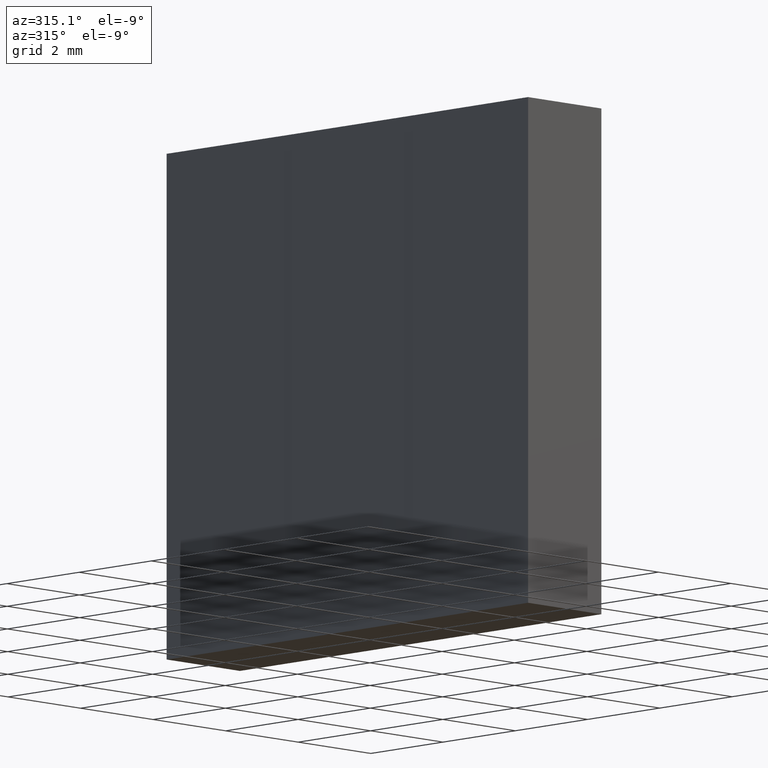
[diagram: clean part render]
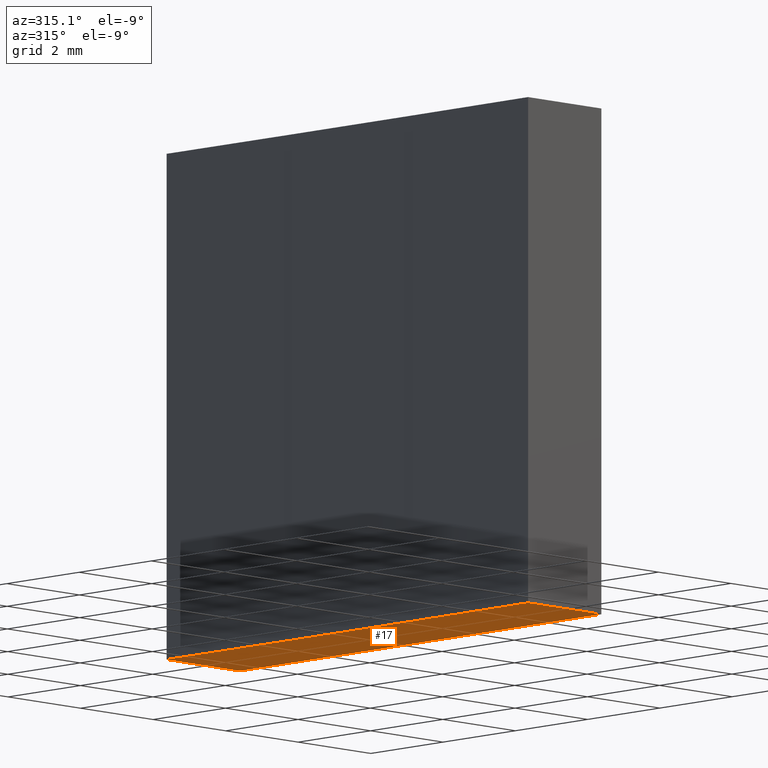
[diagram: same view with one face highlighted and labeled with its STEP entity id]
A machine part, auxiliary view. The second image highlights one B-rep face of the part: STEP entity #17.
In plain terms, the highlighted planar face has unit normal (0, 0, 1).
Its self-contained STEP definition (entity closure, byte-faithful):
#3 = CARTESIAN_POINT ( 'NONE',  ( 433.8743084995878121, -114.5310099826064487, 0.000000000000000000 ) ) ;
#4 = AXIS2_PLACEMENT_3D ( 'NONE', #60, #9, #141 ) ;
#9 = DIRECTION ( 'NONE',  ( 0.000000000000000000, 0.000000000000000000, 1.000000000000000000 ) ) ;
#14 = AXIS2_PLACEMENT_3D ( 'NONE', #81, #229, #123 ) ;
#17 = ADVANCED_FACE ( 'NONE', ( #209 ), #44, .F. ) ;
#33 = EDGE_LOOP ( 'NONE', ( #183, #97, #130, #112 ) ) ;
#43 = LINE ( 'NONE', #99, #127 ) ;
#44 = PLANE ( 'NONE',  #4 ) ;
#47 = CARTESIAN_POINT ( 'NONE',  ( 433.8743084995877553, -124.5310099826064203, 0.000000000000000000 ) ) ;
#55 = VERTEX_POINT ( 'NONE', #211 ) ;
#57 = VERTEX_POINT ( 'NONE', #3 ) ;
#60 = CARTESIAN_POINT ( 'NONE',  ( -84.92150362787631934, -119.5310099826064345, 0.000000000000000000 ) ) ;
#81 = CARTESIAN_POINT ( 'NONE',  ( -84.92150362787631934, -119.5310099826064345, 0.000000000000000000 ) ) ;
#97 = ORIENTED_EDGE ( 'NONE', *, *, #152, .F. ) ;
#99 = CARTESIAN_POINT ( 'NONE',  ( 431.8543084995877166, -114.5310099826064345, 0.000000000000000000 ) ) ;
#107 = EDGE_CURVE ( 'NONE', #55, #224, #190, .T. ) ;
#108 = VECTOR ( 'NONE', #188, 1000.000000000000000 ) ;
#111 = EDGE_CURVE ( 'NONE', #132, #55, #202, .T. ) ;
#112 = ORIENTED_EDGE ( 'NONE', *, *, #107, .F. ) ;
#123 = DIRECTION ( 'NONE',  ( 1.000000000000000000, 0.000000000000000000, 0.000000000000000000 ) ) ;
#127 = VECTOR ( 'NONE', #228, 1000.000000000000000 ) ;
#130 = ORIENTED_EDGE ( 'NONE', *, *, #231, .F. ) ;
#132 = VERTEX_POINT ( 'NONE', #157 ) ;
#141 = DIRECTION ( 'NONE',  ( 1.000000000000000000, 0.000000000000000000, -0.000000000000000000 ) ) ;
#152 = EDGE_CURVE ( 'NONE', #57, #132, #43, .T. ) ;
#157 = CARTESIAN_POINT ( 'NONE',  ( 431.8543084995877166, -114.5310099826064345, 0.000000000000000000 ) ) ;
#180 = CARTESIAN_POINT ( 'NONE',  ( 433.8743084995878121, -114.5310099826064487, 0.000000000000000000 ) ) ;
#183 = ORIENTED_EDGE ( 'NONE', *, *, #111, .F. ) ;
#188 = DIRECTION ( 'NONE',  ( 1.000000000000000000, 0.000000000000000000, 0.000000000000000000 ) ) ;
#190 = LINE ( 'NONE', #208, #108 ) ;
#199 = VECTOR ( 'NONE', #218, 1000.000000000000000 ) ;
#200 = LINE ( 'NONE', #180, #199 ) ;
#202 = CIRCLE ( 'NONE', #14, 516.8000000000000682 ) ;
#208 = CARTESIAN_POINT ( 'NONE',  ( 431.8543084995877166, -124.5310099826064203, 0.000000000000000000 ) ) ;
#209 = FACE_OUTER_BOUND ( 'NONE', #33, .T. ) ;
#211 = CARTESIAN_POINT ( 'NONE',  ( 431.8543084995877166, -124.5310099826064203, 0.000000000000000000 ) ) ;
#218 = DIRECTION ( 'NONE',  ( 5.551115123125792957E-15, 1.000000000000000000, -0.000000000000000000 ) ) ;
#224 = VERTEX_POINT ( 'NONE', #47 ) ;
#228 = DIRECTION ( 'NONE',  ( -1.000000000000000000, 6.870191984066299653E-15, -0.000000000000000000 ) ) ;
#229 = DIRECTION ( 'NONE',  ( -0.000000000000000000, -0.000000000000000000, -1.000000000000000000 ) ) ;
#231 = EDGE_CURVE ( 'NONE', #224, #57, #200, .T. ) ;